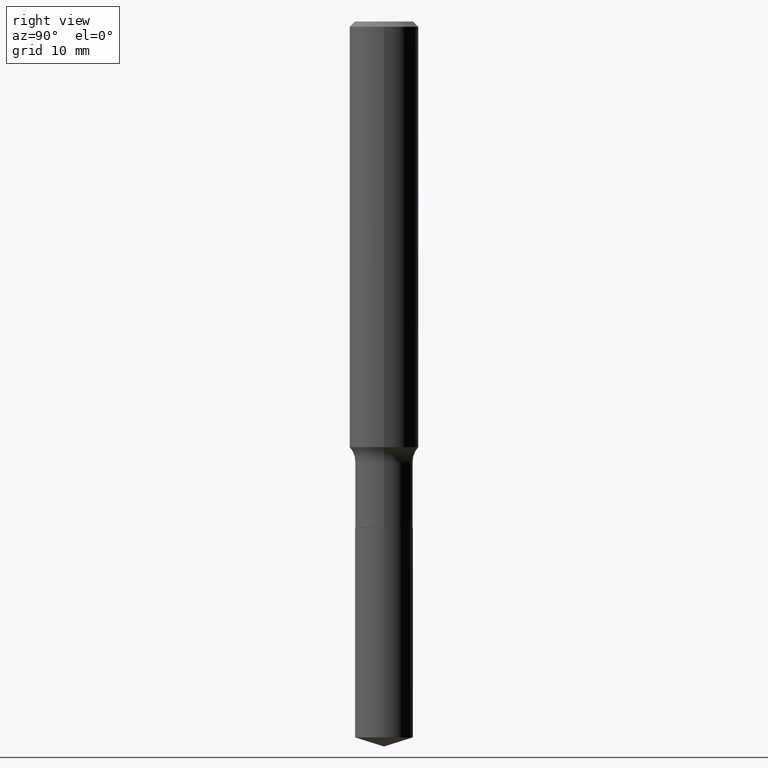
[diagram: clean part render]
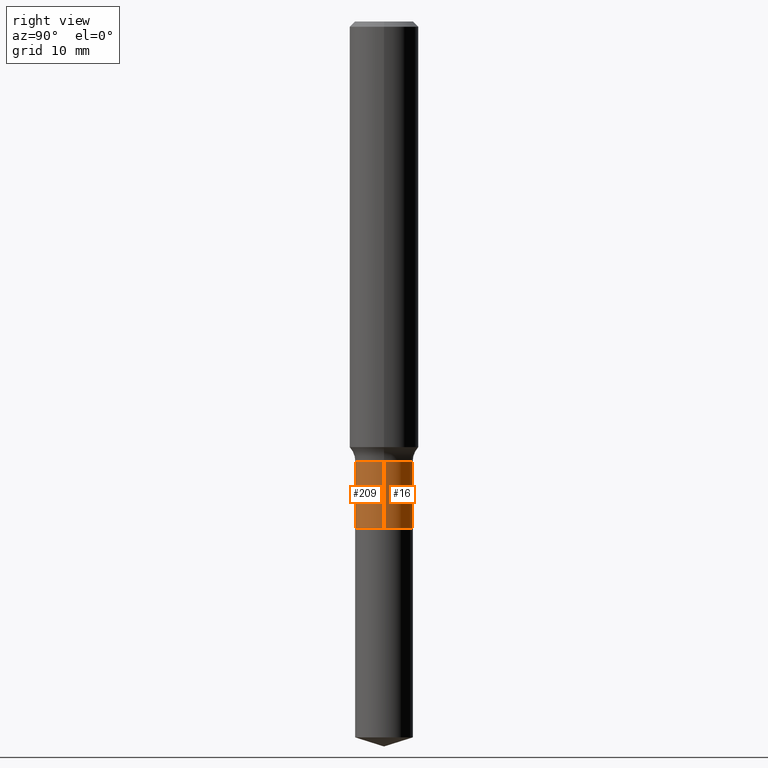
[diagram: same view with one multi-face feature highlighted, each face labeled with its STEP entity id]
A machine part, right view. The highlighted faces form ONE feature: a constant-radius fillet chain: 2 tangent blend faces with common blend radius 2.6543 mm. The faces share edges in the B-rep.
Their STEP definitions:
[1] entity #209 (Cylinder):
#3 = VERTEX_POINT ( 'NONE', #454 ) ;
#15 = AXIS2_PLACEMENT_3D ( 'NONE', #226, #187, #339 ) ;
#33 = AXIS2_PLACEMENT_3D ( 'NONE', #303, #34, #111 ) ;
#34 = DIRECTION ( 'NONE',  ( -2.445468806185136597E-29, 3.491481338843145583E-15, 1.000000000000000000 ) ) ;
#66 = CYLINDRICAL_SURFACE ( 'NONE', #306, 0.1044999999999999679 ) ;
#82 = VERTEX_POINT ( 'NONE', #128 ) ;
#87 = EDGE_CURVE ( 'NONE', #169, #420, #440, .T. ) ;
#98 = ORIENTED_EDGE ( 'NONE', *, *, #87, .T. ) ;
#103 = CIRCLE ( 'NONE', #15, 0.1044999999999999818 ) ;
#104 = CIRCLE ( 'NONE', #33, 0.1044999999999999540 ) ;
#111 = DIRECTION ( 'NONE',  ( 1.000000000000000000, -6.982962677686266711E-15, 0.000000000000000000 ) ) ;
#128 = CARTESIAN_POINT ( 'NONE',  ( -0.1044999999999999818, -5.240310689305368552E-15, -1.833500000000000352 ) ) ;
#138 = DIRECTION ( 'NONE',  ( -2.445468806185136597E-29, 3.491481338843145583E-15, 1.000000000000000000 ) ) ;
#156 = CARTESIAN_POINT ( 'NONE',  ( 0.1044999999999999679, -7.297195998182146228E-16, 5.095604730706752119E-30 ) ) ;
#169 = VERTEX_POINT ( 'NONE', #278 ) ;
#170 = CARTESIAN_POINT ( 'NONE',  ( 0.000000000000000000, 0.000000000000000000, 0.000000000000000000 ) ) ;
#187 = DIRECTION ( 'NONE',  ( -2.445468806185136597E-29, 3.491481338843145583E-15, 1.000000000000000000 ) ) ;
#199 = VECTOR ( 'NONE', #289, 39.37007874015748143 ) ;
#207 = DIRECTION ( 'NONE',  ( -2.445468806185136877E-29, 3.491481338843145188E-15, 1.000000000000000000 ) ) ;
#209 = ADVANCED_FACE ( 'NONE', ( #416 ), #66, .T. ) ;
#212 = LINE ( 'NONE', #364, #199 ) ;
#226 = CARTESIAN_POINT ( 'NONE',  ( 4.483767056140448215E-29, -6.401631034768908389E-15, -1.833500000000000352 ) ) ;
#257 = EDGE_CURVE ( 'NONE', #82, #3, #212, .T. ) ;
#278 = CARTESIAN_POINT ( 'NONE',  ( 0.1044999999999999818, -7.131350634587122124E-15, -1.833500000000000352 ) ) ;
#289 = DIRECTION ( 'NONE',  ( -2.445468806185136877E-29, 3.491481338843145188E-15, 1.000000000000000000 ) ) ;
#303 = CARTESIAN_POINT ( 'NONE',  ( 3.897099089536633274E-29, -5.564024661580436267E-15, -1.593599999999999905 ) ) ;
#306 = AXIS2_PLACEMENT_3D ( 'NONE', #170, #138, #324 ) ;
#324 = DIRECTION ( 'NONE',  ( 1.000000000000000000, -6.982962677686266711E-15, 4.876176775795936353E-29 ) ) ;
#325 = ORIENTED_EDGE ( 'NONE', *, *, #366, .F. ) ;
#339 = DIRECTION ( 'NONE',  ( 1.000000000000000000, -6.982962677686264344E-15, 0.000000000000000000 ) ) ;
#351 = VECTOR ( 'NONE', #207, 39.37007874015748143 ) ;
#355 = CARTESIAN_POINT ( 'NONE',  ( 0.1044999999999999540, -6.293744261398650791E-15, -1.593599999999999905 ) ) ;
#364 = CARTESIAN_POINT ( 'NONE',  ( -0.1044999999999999679, 7.425171588693044663E-16, -5.140287169316375031E-30 ) ) ;
#366 = EDGE_CURVE ( 'NONE', #3, #420, #104, .T. ) ;
#369 = EDGE_LOOP ( 'NONE', ( #483, #476, #98, #325 ) ) ;
#376 = EDGE_CURVE ( 'NONE', #82, #169, #103, .T. ) ;
#416 = FACE_OUTER_BOUND ( 'NONE', #369, .T. ) ;
#420 = VERTEX_POINT ( 'NONE', #355 ) ;
#440 = LINE ( 'NONE', #156, #351 ) ;
#454 = CARTESIAN_POINT ( 'NONE',  ( -0.1044999999999999540, -5.240310689305368552E-15, -1.593599999999999905 ) ) ;
#476 = ORIENTED_EDGE ( 'NONE', *, *, #376, .T. ) ;
#483 = ORIENTED_EDGE ( 'NONE', *, *, #257, .F. ) ;
[2] entity #16 (Cylinder):
#3 = VERTEX_POINT ( 'NONE', #454 ) ;
#16 = ADVANCED_FACE ( 'NONE', ( #32 ), #186, .T. ) ;
#32 = FACE_OUTER_BOUND ( 'NONE', #255, .T. ) ;
#52 = CARTESIAN_POINT ( 'NONE',  ( 3.897099089536633274E-29, -5.564024661580436267E-15, -1.593599999999999905 ) ) ;
#71 = DIRECTION ( 'NONE',  ( 1.000000000000000000, -6.982962677686264344E-15, 0.000000000000000000 ) ) ;
#73 = EDGE_CURVE ( 'NONE', #420, #3, #432, .T. ) ;
#82 = VERTEX_POINT ( 'NONE', #128 ) ;
#87 = EDGE_CURVE ( 'NONE', #169, #420, #440, .T. ) ;
#101 = ORIENTED_EDGE ( 'NONE', *, *, #257, .T. ) ;
#105 = ORIENTED_EDGE ( 'NONE', *, *, #87, .F. ) ;
#110 = DIRECTION ( 'NONE',  ( -2.445468806185136597E-29, 3.491481338843145583E-15, 1.000000000000000000 ) ) ;
#121 = DIRECTION ( 'NONE',  ( -2.445468806185136597E-29, 3.491481338843145583E-15, 1.000000000000000000 ) ) ;
#128 = CARTESIAN_POINT ( 'NONE',  ( -0.1044999999999999818, -5.240310689305368552E-15, -1.833500000000000352 ) ) ;
#145 = DIRECTION ( 'NONE',  ( -2.445468806185136597E-29, 3.491481338843145583E-15, 1.000000000000000000 ) ) ;
#147 = CARTESIAN_POINT ( 'NONE',  ( 4.483767056140448215E-29, -6.401631034768908389E-15, -1.833500000000000352 ) ) ;
#155 = AXIS2_PLACEMENT_3D ( 'NONE', #147, #110, #71 ) ;
#156 = CARTESIAN_POINT ( 'NONE',  ( 0.1044999999999999679, -7.297195998182146228E-16, 5.095604730706752119E-30 ) ) ;
#169 = VERTEX_POINT ( 'NONE', #278 ) ;
#183 = ORIENTED_EDGE ( 'NONE', *, *, #387, .T. ) ;
#186 = CYLINDRICAL_SURFACE ( 'NONE', #485, 0.1044999999999999679 ) ;
#199 = VECTOR ( 'NONE', #289, 39.37007874015748143 ) ;
#207 = DIRECTION ( 'NONE',  ( -2.445468806185136877E-29, 3.491481338843145188E-15, 1.000000000000000000 ) ) ;
#212 = LINE ( 'NONE', #364, #199 ) ;
#236 = DIRECTION ( 'NONE',  ( 1.000000000000000000, -6.982962677686266711E-15, 0.000000000000000000 ) ) ;
#244 = DIRECTION ( 'NONE',  ( 1.000000000000000000, -6.982962677686266711E-15, 4.876176775795936353E-29 ) ) ;
#255 = EDGE_LOOP ( 'NONE', ( #183, #101, #256, #105 ) ) ;
#256 = ORIENTED_EDGE ( 'NONE', *, *, #73, .F. ) ;
#257 = EDGE_CURVE ( 'NONE', #82, #3, #212, .T. ) ;
#278 = CARTESIAN_POINT ( 'NONE',  ( 0.1044999999999999818, -7.131350634587122124E-15, -1.833500000000000352 ) ) ;
#289 = DIRECTION ( 'NONE',  ( -2.445468806185136877E-29, 3.491481338843145188E-15, 1.000000000000000000 ) ) ;
#317 = AXIS2_PLACEMENT_3D ( 'NONE', #52, #121, #236 ) ;
#351 = VECTOR ( 'NONE', #207, 39.37007874015748143 ) ;
#355 = CARTESIAN_POINT ( 'NONE',  ( 0.1044999999999999540, -6.293744261398650791E-15, -1.593599999999999905 ) ) ;
#364 = CARTESIAN_POINT ( 'NONE',  ( -0.1044999999999999679, 7.425171588693044663E-16, -5.140287169316375031E-30 ) ) ;
#383 = CIRCLE ( 'NONE', #155, 0.1044999999999999818 ) ;
#387 = EDGE_CURVE ( 'NONE', #169, #82, #383, .T. ) ;
#420 = VERTEX_POINT ( 'NONE', #355 ) ;
#432 = CIRCLE ( 'NONE', #317, 0.1044999999999999540 ) ;
#440 = LINE ( 'NONE', #156, #351 ) ;
#454 = CARTESIAN_POINT ( 'NONE',  ( -0.1044999999999999540, -5.240310689305368552E-15, -1.593599999999999905 ) ) ;
#485 = AXIS2_PLACEMENT_3D ( 'NONE', #486, #145, #244 ) ;
#486 = CARTESIAN_POINT ( 'NONE',  ( 0.000000000000000000, 0.000000000000000000, 0.000000000000000000 ) ) ;